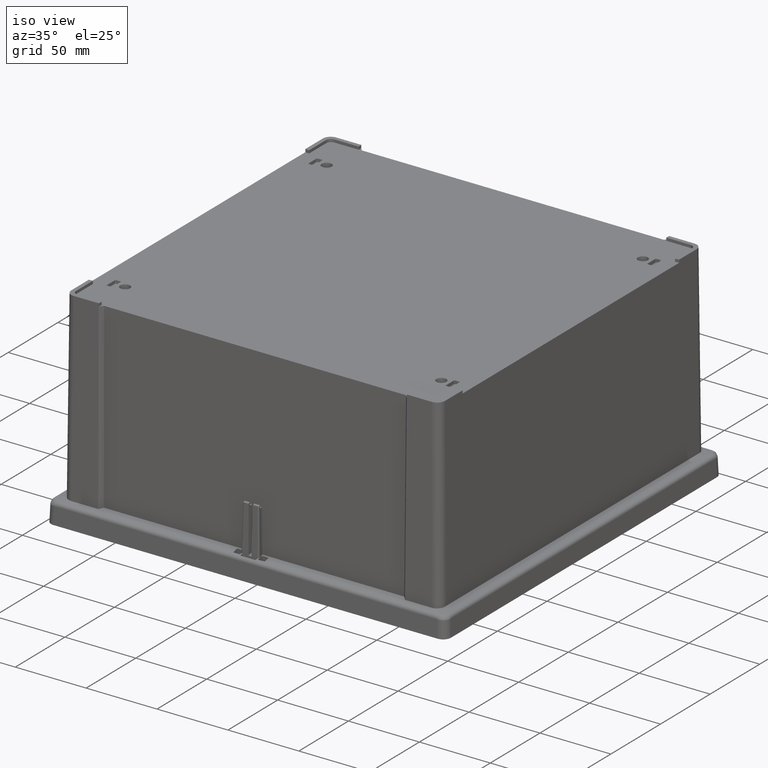
[diagram: clean part render]
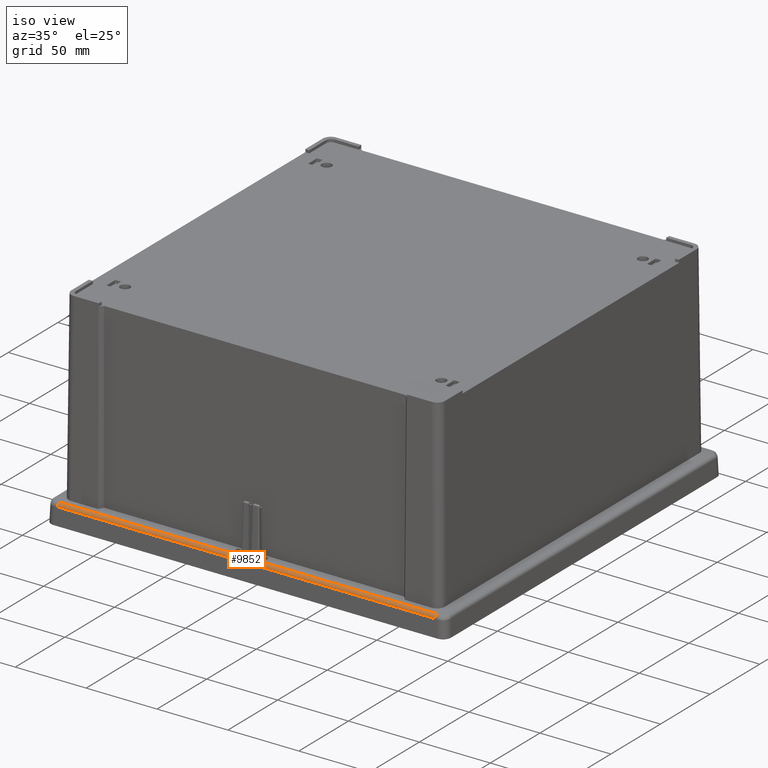
[diagram: same view with one face highlighted and labeled with its STEP entity id]
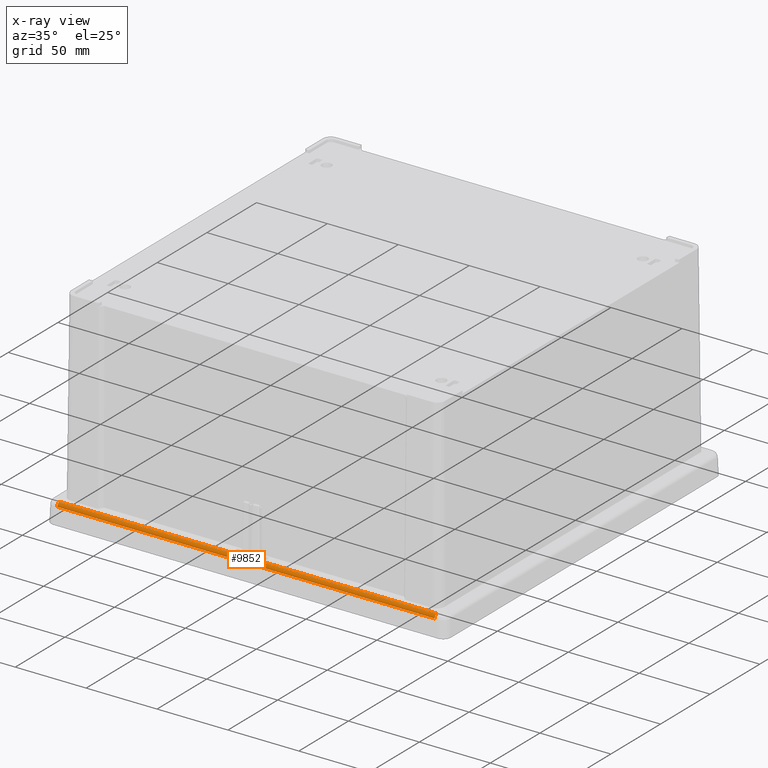
[diagram: x-ray of the same camera — body ghosted, the highlighted face saturated]
A machine part, iso view. The second image highlights one B-rep face of the part: STEP entity #9852.
The next image is the same camera in x-ray: the body ghosted, the highlighted face saturated — about 0% of this face is hidden behind the body in this view.
In plain terms, the highlighted cylindrical surface (edge-blend (fillet) strip) has radius 2.5 mm, axis along (-1, 0, 0).
Its self-contained STEP definition (entity closure, byte-faithful):
#1076 = CARTESIAN_POINT ( 'NONE',  ( 5.389634827945240400, -137.0507107485933600, 14.40617969068507700 ) ) ;
#1077 = DIRECTION ( 'NONE',  ( -1.000000000000000000, 0.0000000000000000000, 0.0000000000000000000 ) ) ;
#1078 = VECTOR ( 'NONE', #1077, 1000.000000000000000 ) ;
#1079 = CARTESIAN_POINT ( 'NONE',  ( -135.8816485073900300, -137.0507107485933600, 14.40617969068507900 ) ) ;
#1080 = LINE ( 'NONE', #1079, #1078 ) ;
#1204 = CARTESIAN_POINT ( 'NONE',  ( -5.389634827945180000, -137.0507107485933600, 14.40617969068507700 ) ) ;
#1221 = CARTESIAN_POINT ( 'NONE',  ( -133.1036063144391900, -139.0292714759184200, 12.04808857894751400 ) ) ;
#1222 = DIRECTION ( 'NONE',  ( 1.000000000000000000, -0.0000000000000000000, -0.0000000000000000000 ) ) ;
#1223 = VECTOR ( 'NONE', #1222, 1000.000000000000000 ) ;
#1224 = CARTESIAN_POINT ( 'NONE',  ( -135.8816485073900300, -139.0292714759190500, 12.04808857893015400 ) ) ;
#1229 = CARTESIAN_POINT ( 'NONE',  ( 133.1036050521719300, -139.0292714719048800, 12.04808869391880900 ) ) ;
#1231 = LINE ( 'NONE', #1224, #1223 ) ;
#1583 = CARTESIAN_POINT ( 'NONE',  ( -1.421085471520200400E-014, -137.0507107485933600, 14.40617969068507700 ) ) ;
#1689 = CARTESIAN_POINT ( 'NONE',  ( -133.1036075715512700, -136.5307944083712900, 11.96083983717389800 ) ) ;
#1705 = CARTESIAN_POINT ( 'NONE',  ( -133.1036075715558400, -137.0507107931754500, 14.40617977183597500 ) ) ;
#1706 = DIRECTION ( 'NONE',  ( 0.0000000000000000000, 0.0000000000000000000, 1.000000000000000000 ) ) ;
#1707 = DIRECTION ( 'NONE',  ( 1.000000000000000000, -0.0000000000000000000, -0.0000000000000000000 ) ) ;
#1708 = AXIS2_PLACEMENT_3D ( 'NONE', #1689, #1707, #1706 ) ;
#1709 = CIRCLE ( 'NONE', #1708, 2.500000000000000400 ) ;
#1767 = VECTOR ( 'NONE', #2044, 1000.000000000000000 ) ;
#1902 = DIRECTION ( 'NONE',  ( 0.0000000000000000000, 0.0000000000000000000, 1.000000000000000000 ) ) ;
#1903 = DIRECTION ( 'NONE',  ( -1.000000000000000000, 0.0000000000000000000, 0.0000000000000000000 ) ) ;
#1904 = CARTESIAN_POINT ( 'NONE',  ( -135.8816485073900300, -136.5307944083712900, 11.96083983717389800 ) ) ;
#1905 = AXIS2_PLACEMENT_3D ( 'NONE', #1904, #1903, #1902 ) ;
#1906 = CYLINDRICAL_SURFACE ( 'NONE', #1905, 2.500000000000000400 ) ;
#1907 = FACE_OUTER_BOUND ( 'NONE', #9853, .T. ) ;
#1999 = LINE ( 'NONE', #1583, #1767 ) ;
#2001 = CARTESIAN_POINT ( 'NONE',  ( 133.1036075715604200, -137.0507108377575200, 14.40617985298687400 ) ) ;
#2002 = DIRECTION ( 'NONE',  ( -2.071730009767236400E-006, 0.0000000000000000000, -0.9999999999978539400 ) ) ;
#2003 = DIRECTION ( 'NONE',  ( 0.9999999999978515000, -7.234639314064063700E-008, -2.071730004994196400E-006 ) ) ;
#2004 = CARTESIAN_POINT ( 'NONE',  ( 133.1036025431044400, -136.5307943924284500, 11.96084029371739800 ) ) ;
#2005 = AXIS2_PLACEMENT_3D ( 'NONE', #2004, #2003, #2002 ) ;
#2006 = CIRCLE ( 'NONE', #2005, 2.500000000000000000 ) ;
#2007 = DIRECTION ( 'NONE',  ( -1.000000000000000000, 0.0000000000000000000, -0.0000000000000000000 ) ) ;
#2008 = VECTOR ( 'NONE', #2007, 1000.000000000000000 ) ;
#2009 = CARTESIAN_POINT ( 'NONE',  ( -1.421085471520200400E-014, -137.0507107485933600, 14.40617969068507700 ) ) ;
#2010 = LINE ( 'NONE', #2009, #2008 ) ;
#2044 = DIRECTION ( 'NONE',  ( -1.000000000000000000, 0.0000000000000000000, -0.0000000000000000000 ) ) ;
#9388 = EDGE_CURVE ( 'NONE', #9389, #9468, #1080, .T. ) ;
#9389 = VERTEX_POINT ( 'NONE', #1076 ) ;
#9468 = VERTEX_POINT ( 'NONE', #1204 ) ;
#9489 = VERTEX_POINT ( 'NONE', #1229 ) ;
#9491 = EDGE_CURVE ( 'NONE', #9492, #9489, #1231, .T. ) ;
#9492 = VERTEX_POINT ( 'NONE', #1221 ) ;
#9732 = EDGE_CURVE ( 'NONE', #9733, #9492, #1709, .T. ) ;
#9733 = VERTEX_POINT ( 'NONE', #1705 ) ;
#9852 = ADVANCED_FACE ( 'NONE', ( #1907 ), #1906, .T. ) ;
#9853 = EDGE_LOOP ( 'NONE', ( #9854, #9909, #9911, #9912, #9913, #9916 ) ) ;
#9854 = ORIENTED_EDGE ( 'NONE', *, *, #9388, .T. ) ;
#9909 = ORIENTED_EDGE ( 'NONE', *, *, #9910, .T. ) ;
#9910 = EDGE_CURVE ( 'NONE', #9468, #9733, #2010, .T. ) ;
#9911 = ORIENTED_EDGE ( 'NONE', *, *, #9732, .T. ) ;
#9912 = ORIENTED_EDGE ( 'NONE', *, *, #9491, .T. ) ;
#9913 = ORIENTED_EDGE ( 'NONE', *, *, #9914, .F. ) ;
#9914 = EDGE_CURVE ( 'NONE', #9915, #9489, #2006, .T. ) ;
#9915 = VERTEX_POINT ( 'NONE', #2001 ) ;
#9916 = ORIENTED_EDGE ( 'NONE', *, *, #9917, .T. ) ;
#9917 = EDGE_CURVE ( 'NONE', #9915, #9389, #1999, .T. ) ;